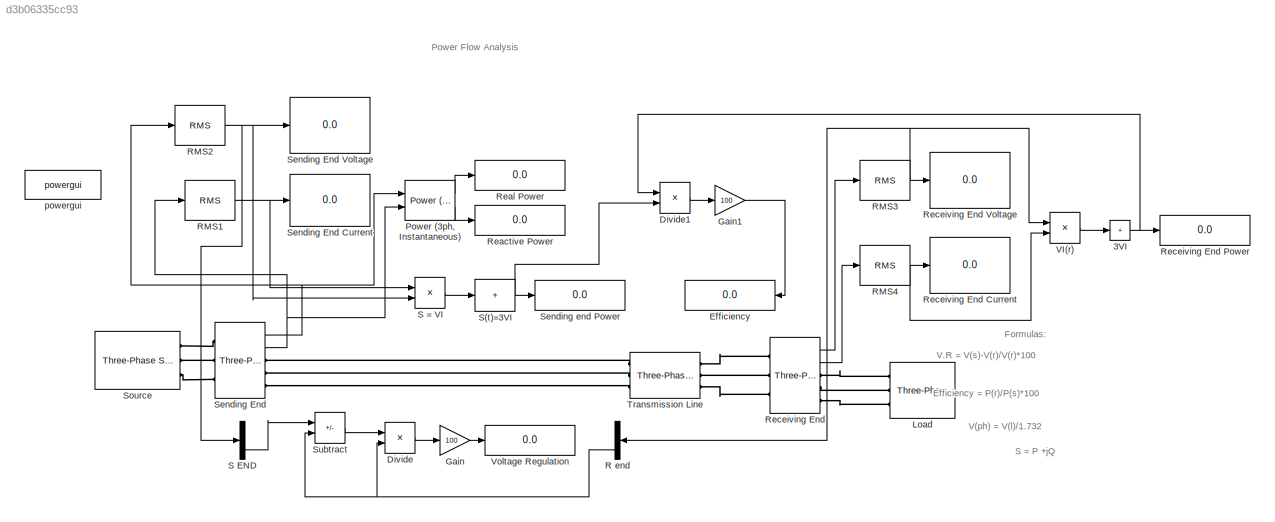
MODEL slx_d3b06335cc93
KIND model
CONFIG AbsTol = auto
CONFIG EnableMultiTasking = off
CONFIG FixedStep = auto
CONFIG MaxStep = auto
CONFIG MinStep = auto
CONFIG RelTol = 1e-3
CONFIG SampleTimeConstraint = Unconstrained
CONFIG Solver = VariableStepAuto
CONFIG SolverName = VariableStepAuto
CONFIG StartTime = 0.0
CONFIG StopTime = 1
BLOCK [Sum] 3VI
  IconShape = rectangular
  Inputs = +
  Ports = [1, 1]
BLOCK [Product] Divide
  Inputs = */
  Ports = [2, 1]
BLOCK [Product] Divide1
  Inputs = */
  Ports = [2, 1]
BLOCK [Display] Efficiency
  Decimation = 1
  Ports = [1]
BLOCK [Gain] Gain
  Gain = 100
BLOCK [Gain] Gain1
  Gain = 100
BLOCK [Reference] Load  REF=powerlib/Elements/Three-Phase
Series RLC Load
  AttributesFormatString = \n
  Ports = [0, 0, 0, 0, 0, 3]
  SourceBlock = powerlib/Elements/Three-Phase\nSeries RLC Load
  SourceProductBaseCode = PS
  SourceType = Three-Phase Series RLC Load
BLOCK [Reference] Power (3ph, Instantaneous)  REF=powerlib_meascontrol/Measurements/Power
(3ph, Instantaneous)
  Ports = [2, 2]
  SourceBlock = powerlib_meascontrol/Measurements/Power\n(3ph, Instantaneous)
  SourceProductBaseCode = PS
  SourceType = Power (3ph, Instantaneous)
BLOCK [Demux] R end
  Outputs = 3
  Ports = [1, 3]
BLOCK [Reference] RMS1  REF=powerlib_meascontrol/Measurements/RMS
  Ports = [1, 1]
  SourceBlock = powerlib_meascontrol/Measurements/RMS
  SourceProductBaseCode = PS
  SourceType = RMS
BLOCK [Reference] RMS2  REF=powerlib_meascontrol/Measurements/RMS
  Ports = [1, 1]
  SourceBlock = powerlib_meascontrol/Measurements/RMS
  SourceProductBaseCode = PS
  SourceType = RMS
BLOCK [Reference] RMS3  REF=powerlib_meascontrol/Measurements/RMS
  Ports = [1, 1]
  SourceBlock = powerlib_meascontrol/Measurements/RMS
  SourceProductBaseCode = PS
  SourceType = RMS
BLOCK [Reference] RMS4  REF=powerlib_meascontrol/Measurements/RMS
  Ports = [1, 1]
  SourceBlock = powerlib_meascontrol/Measurements/RMS
  SourceProductBaseCode = PS
  SourceType = RMS
BLOCK [Display] Reactive Power
  Decimation = 1
  Ports = [1]
BLOCK [Display] Real Power
  Decimation = 1
  Ports = [1]
BLOCK [Reference] Receiving End  REF=powerlib/Measurements/Three-Phase
V-I Measurement
  Ports = [0, 2, 0, 0, 0, 3, 3]
  SourceBlock = powerlib/Measurements/Three-Phase\nV-I Measurement
  SourceProductBaseCode = PS
  SourceType = Three-Phase VI Measurement
BLOCK [Display] Receiving End Current
  Decimation = 1
  Ports = [1]
BLOCK [Display] Receiving End Power
  Decimation = 1
  Ports = [1]
BLOCK [Display] Receiving End Voltage
  Decimation = 1
  Ports = [1]
BLOCK [Product] S = VI
  Ports = [2, 1]
BLOCK [Demux] S END
  Outputs = 3
  Ports = [1, 3]
BLOCK [Sum] S(t)=3VI
  IconShape = rectangular
  Inputs = +
  Ports = [1, 1]
BLOCK [Reference] Sending End  REF=powerlib/Measurements/Three-Phase
V-I Measurement
  Ports = [0, 2, 0, 0, 0, 3, 3]
  SourceBlock = powerlib/Measurements/Three-Phase\nV-I Measurement
  SourceProductBaseCode = PS
  SourceType = Three-Phase VI Measurement
BLOCK [Display] Sending End Current
  Decimation = 1
  Ports = [1]
BLOCK [Display] Sending End Voltage
  Decimation = 1
  Ports = [1]
BLOCK [Display] Sending end Power
  Decimation = 1
  Ports = [1]
BLOCK [Reference] Source  REF=powerlib/Electrical
Sources/Three-Phase Source
  Ports = [0, 0, 0, 0, 0, 0, 3]
  SourceBlock = powerlib/Electrical\nSources/Three-Phase Source
  SourceProductBaseCode = PS
  SourceType = Three-Phase Source
BLOCK [Sum] Subtract
  IconShape = rectangular
  Inputs = +-
  Ports = [2, 1]
BLOCK [Reference] Transmission Line  REF=powerlib/Elements/Three-Phase
Series RLC Branch
  AttributesFormatString = \n
  Ports = [0, 0, 0, 0, 0, 3, 3]
  SourceBlock = powerlib/Elements/Three-Phase\nSeries RLC Branch
  SourceProductBaseCode = PS
  SourceType = Three-Phase Series RLC Branch
BLOCK [Product] VI(r)
  Ports = [2, 1]
BLOCK [Display] Voltage Regulation
  Decimation = 1
  Ports = [1]
BLOCK [Reference] powergui  REF=powerlib/powergui
  Ports = []
  Priority = 1
  SourceBlock = powerlib/powergui
  SourceProductBaseCode = PS
  SourceType = PSB option menu block
ANNOTATION (root): Efficiency = P(r)/P(s)*100
ANNOTATION (root): S = P +jQ
ANNOTATION (root): V(ph) = V(l)/1.732
ANNOTATION (root): V.R = V(s)-V(r)/V(r)*100
ANNOTATION (root): Formulas:
ANNOTATION (root): Power Flow Analysis
NET 3VI:1 -> Divide1:1, Receiving End Power:1
LINE Divide1:1 -> Gain1:1
LINE Divide:1 -> Gain:1
LINE Gain1:1 -> Efficiency:1
LINE Gain:1 -> Voltage Regulation:1
LINE Power (3ph, Instantaneous):1 -> Real Power:1
LINE Power (3ph, Instantaneous):2 -> Reactive Power:1
NET R end:3 -> Divide:2, Subtract:2
NET RMS1:1 -> S = VI:1, Sending End Current:1
NET RMS2:1 -> S = VI:2, S END:1, Sending End Voltage:1
NET RMS3:1 -> R end:1, Receiving End Voltage:1, VI(r):1
NET RMS4:1 -> Receiving End Current:1, VI(r):2
LINE Receiving End:1 -> RMS3:1
LINE Receiving End:2 -> RMS4:1
LINE S = VI:1 -> S(t)=3VI:1
LINE S END:3 -> Subtract:1
NET S(t)=3VI:1 -> Divide1:2, Sending end Power:1
NET Sending End:1 -> Power (3ph, Instantaneous):1, RMS2:1
NET Sending End:2 -> Power (3ph, Instantaneous):2, RMS1:1
LINE Subtract:1 -> Divide:1
LINE VI(r):1 -> 3VI:1
PLINE Load:LConn1 -- Receiving End:RConn1
PLINE Load:LConn2 -- Receiving End:RConn2
PLINE Load:LConn3 -- Receiving End:RConn3
PLINE Receiving End:LConn1 -- Transmission Line:RConn1
PLINE Receiving End:LConn2 -- Transmission Line:RConn2
PLINE Receiving End:LConn3 -- Transmission Line:RConn3
PLINE Sending End:LConn1 -- Source:RConn1
PLINE Sending End:LConn2 -- Source:RConn2
PLINE Sending End:LConn3 -- Source:RConn3
PLINE Sending End:RConn1 -- Transmission Line:LConn1
PLINE Sending End:RConn2 -- Transmission Line:LConn2
PLINE Sending End:RConn3 -- Transmission Line:LConn3
note: NET lines group one-source signal fan-out (src -> all destinations, sorted); 1:1 wires keep LINE
